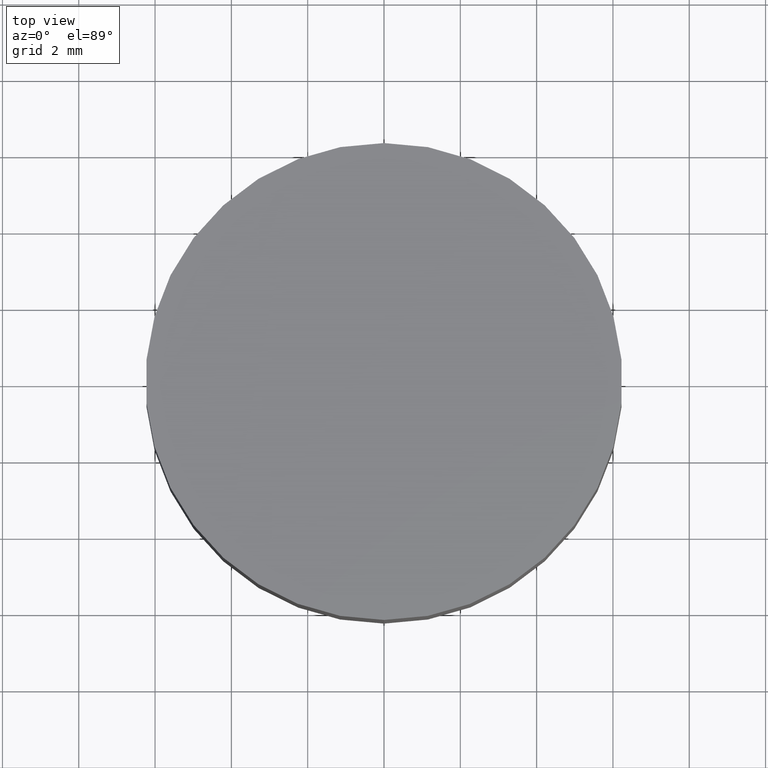
[diagram: clean part render]
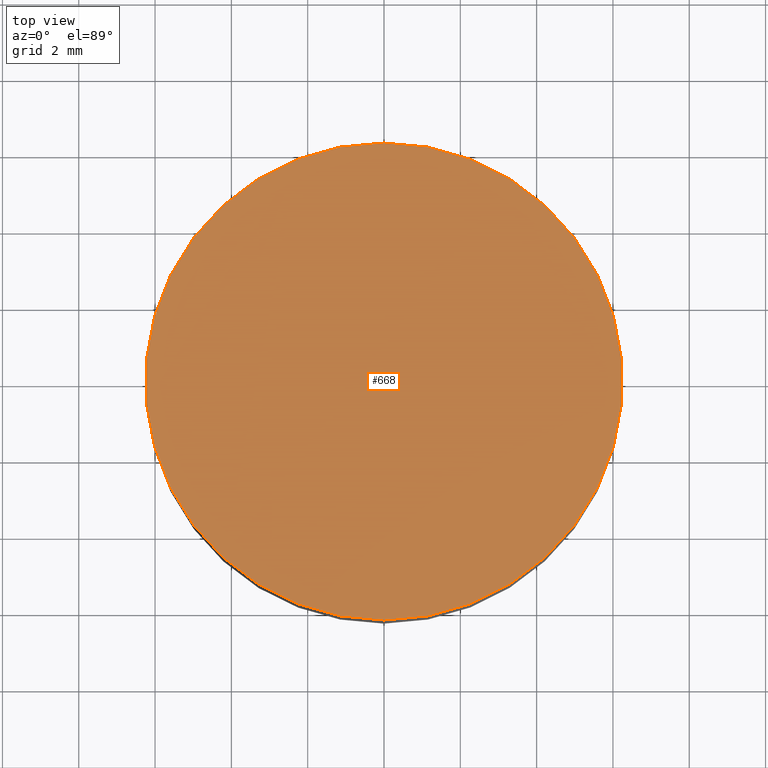
[diagram: same view with one face highlighted and labeled with its STEP entity id]
A machine part, top view. The second image highlights one B-rep face of the part: STEP entity #668.
In plain terms, the highlighted planar face has unit normal (0, 0, 1).
Its self-contained STEP definition (entity closure, byte-faithful):
#5 = EDGE_CURVE ( 'NONE', #53, #728, #659, .T. ) ;
#53 = VERTEX_POINT ( 'NONE', #892 ) ;
#132 = PLANE ( 'NONE',  #588 ) ;
#167 = FACE_OUTER_BOUND ( 'NONE', #400, .T. ) ;
#176 = DIRECTION ( 'NONE',  ( 0.000000000000000000, 0.000000000000000000, -1.000000000000000000 ) ) ;
#190 = DIRECTION ( 'NONE',  ( 1.000000000000000000, 0.000000000000000000, 0.000000000000000000 ) ) ;
#195 = AXIS2_PLACEMENT_3D ( 'NONE', #555, #386, #244 ) ;
#244 = DIRECTION ( 'NONE',  ( 0.000000000000000000, 1.000000000000000000, 0.000000000000000000 ) ) ;
#316 = ORIENTED_EDGE ( 'NONE', *, *, #784, .F. ) ;
#386 = DIRECTION ( 'NONE',  ( 0.000000000000000000, 0.000000000000000000, -1.000000000000000000 ) ) ;
#400 = EDGE_LOOP ( 'NONE', ( #543, #316 ) ) ;
#408 = CIRCLE ( 'NONE', #823, 6.250000000000000000 ) ;
#437 = CARTESIAN_POINT ( 'NONE',  ( 0.000000000000000000, 0.000000000000000000, 7.500000000000000000 ) ) ;
#443 = DIRECTION ( 'NONE',  ( 0.000000000000000000, 0.000000000000000000, 1.000000000000000000 ) ) ;
#543 = ORIENTED_EDGE ( 'NONE', *, *, #5, .F. ) ;
#555 = CARTESIAN_POINT ( 'NONE',  ( 0.000000000000000000, 0.000000000000000000, 7.500000000000000000 ) ) ;
#588 = AXIS2_PLACEMENT_3D ( 'NONE', #664, #443, #190 ) ;
#594 = CARTESIAN_POINT ( 'NONE',  ( 7.654042494670957606E-16, -6.250000000000000000, 7.500000000000000000 ) ) ;
#659 = CIRCLE ( 'NONE', #195, 6.250000000000000000 ) ;
#664 = CARTESIAN_POINT ( 'NONE',  ( 0.000000000000000000, 0.000000000000000000, 7.500000000000000000 ) ) ;
#668 = ADVANCED_FACE ( 'NONE', ( #167 ), #132, .T. ) ;
#728 = VERTEX_POINT ( 'NONE', #594 ) ;
#784 = EDGE_CURVE ( 'NONE', #728, #53, #408, .T. ) ;
#823 = AXIS2_PLACEMENT_3D ( 'NONE', #437, #176, #939 ) ;
#892 = CARTESIAN_POINT ( 'NONE',  ( 0.000000000000000000, 6.250000000000000000, 7.500000000000000000 ) ) ;
#939 = DIRECTION ( 'NONE',  ( 0.000000000000000000, 1.000000000000000000, 0.000000000000000000 ) ) ;